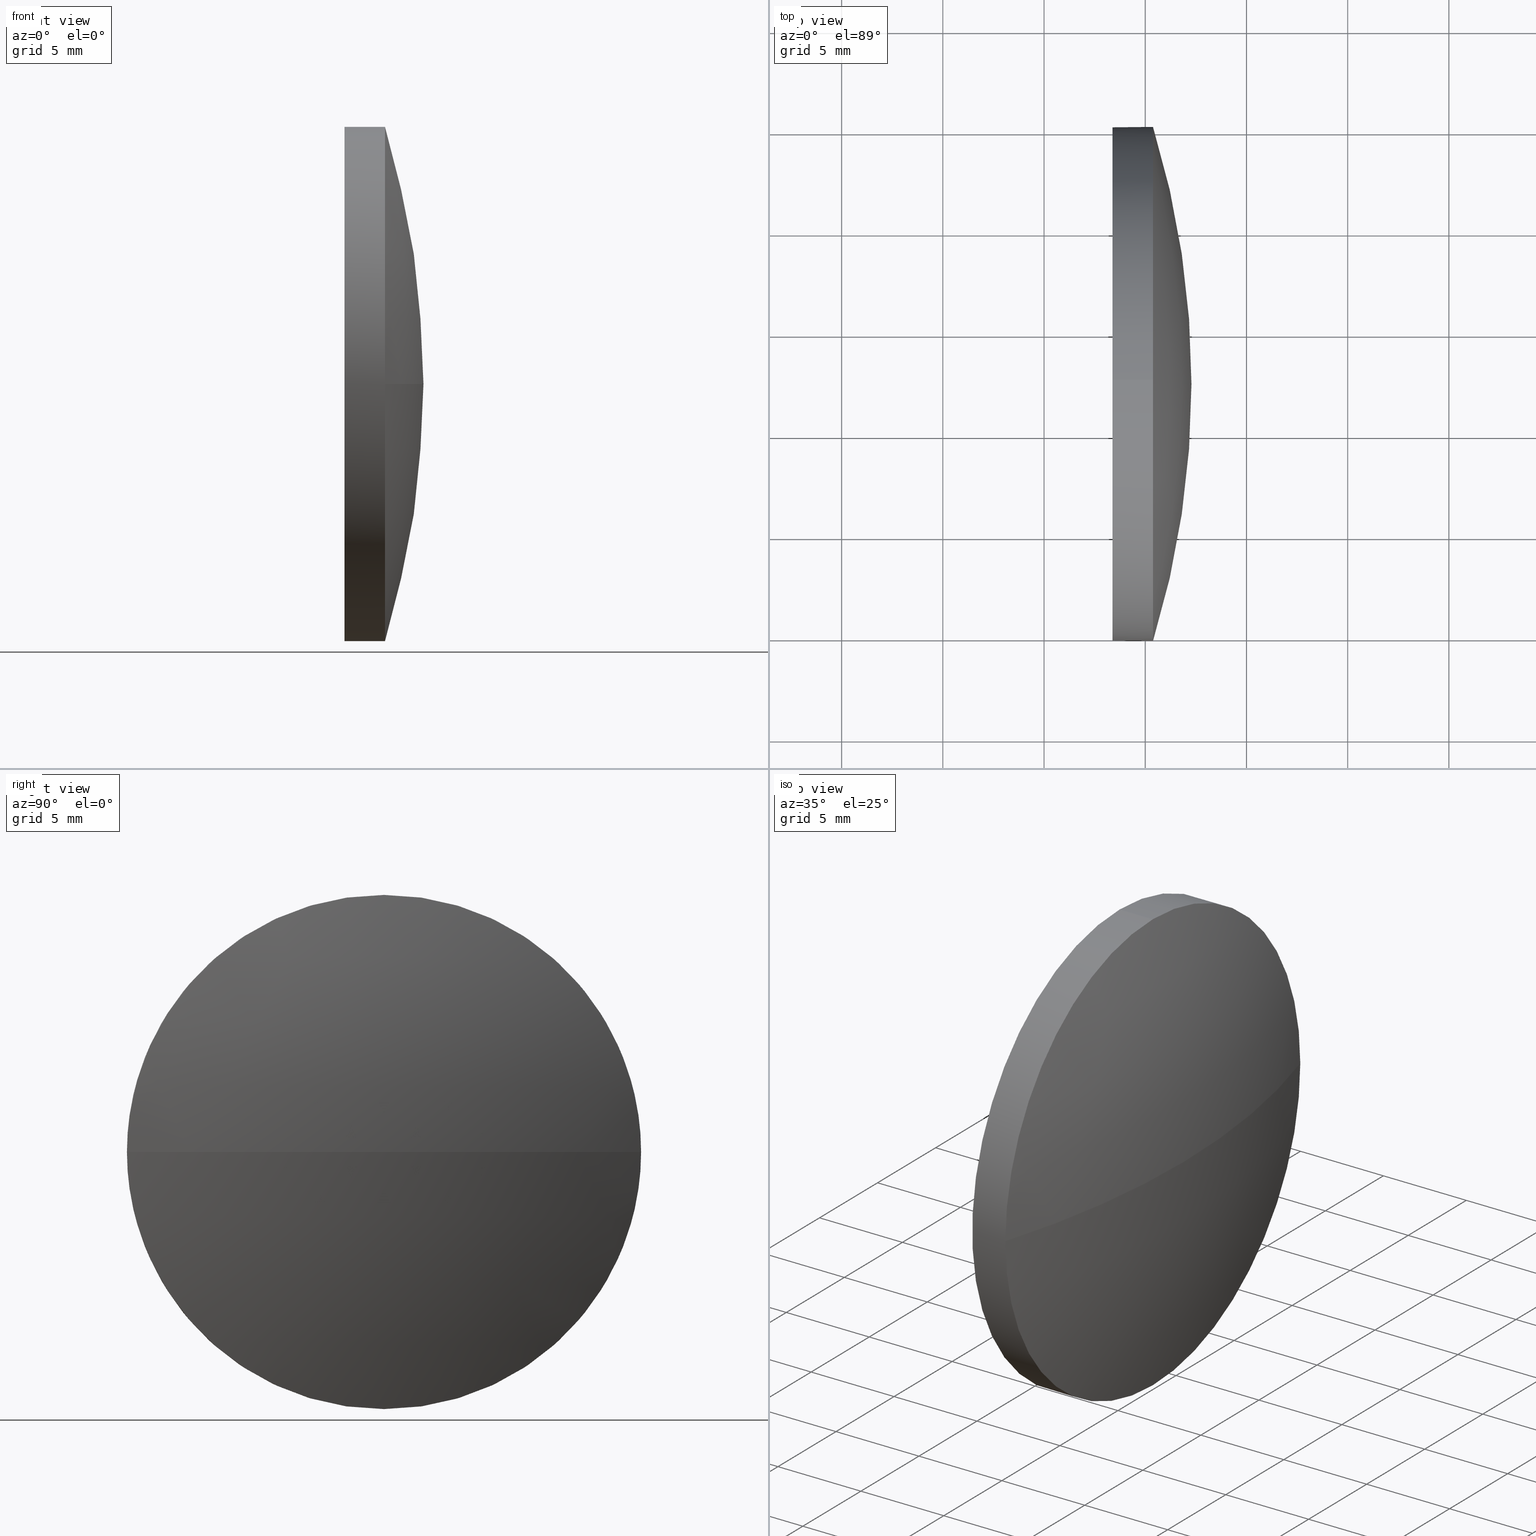
[diagram: canonical four-view strip — front | top / right | iso, engineering-drawing reading convention]
A machine part, canonical four-view strip (front | top / right | iso — engineering-drawing reading convention). The complete STEP part file that produces these views, byte-faithful:
ISO-10303-21;
HEADER;
FILE_DESCRIPTION (( 'STEP AP214' ),
    '1' );
FILE_NAME ('100449.STEP',
    '2019-06-10T01:49:45',
    ( '' ),
    ( '' ),
    'SwSTEP 2.0',
    'SolidWorks 2016',
    '' );
FILE_SCHEMA (( 'AUTOMOTIVE_DESIGN' ));
ENDSEC;

DATA;
#1 = DIRECTION ( 'NONE',  ( -1.000000000000000000, -0.0000000000000000000, -0.0000000000000000000 ) ) ;
#2 = DIRECTION ( 'NONE',  ( 0.0000000000000000000, 0.0000000000000000000, -1.000000000000000000 ) ) ;
#3 = ORIENTED_EDGE ( 'NONE', *, *, #175, .F. ) ;
#4 = FILL_AREA_STYLE ('',( #15 ) ) ;
#5 = SURFACE_SIDE_STYLE ('',( #40 ) ) ;
#6 = CLOSED_SHELL ( 'NONE', ( #20, #97, #180, #145, #182 ) ) ;
#7 =( NAMED_UNIT ( * ) PLANE_ANGLE_UNIT ( ) SI_UNIT ( $, .RADIAN. ) );
#8 = DIRECTION ( 'NONE',  ( 0.0000000000000000000, 0.0000000000000000000, 1.000000000000000000 ) ) ;
#9 = AXIS2_PLACEMENT_3D ( 'NONE', #116, #118, #25 ) ;
#10 = EDGE_LOOP ( 'NONE', ( #57, #22, #3, #113 ) ) ;
#11 = UNCERTAINTY_MEASURE_WITH_UNIT (LENGTH_MEASURE( 1.000000000000000100E-005 ), #72, 'distance_accuracy_value', 'NONE');
#12 = EDGE_CURVE ( 'NONE', #47, #23, #92, .T. ) ;
#13 = VERTEX_POINT ( 'NONE', #61 ) ;
#14 = ORIENTED_EDGE ( 'NONE', *, *, #60, .T. ) ;
#15 = FILL_AREA_STYLE_COLOUR ( '', #31 ) ;
#16 =( NAMED_UNIT ( * ) PLANE_ANGLE_UNIT ( ) SI_UNIT ( $, .RADIAN. ) );
#17 = ORIENTED_EDGE ( 'NONE', *, *, #12, .T. ) ;
#18 = CARTESIAN_POINT ( 'NONE',  ( 488.8881138188364700, 102.4595338729135000, 0.0000000000000000000 ) ) ;
#19 = APPLICATION_CONTEXT ( 'automotive_design' ) ;
#20 = ADVANCED_FACE ( 'NONE', ( #171 ), #140, .T. ) ;
#21 =( GEOMETRIC_REPRESENTATION_CONTEXT ( 3 ) GLOBAL_UNCERTAINTY_ASSIGNED_CONTEXT ( ( #11 ) ) GLOBAL_UNIT_ASSIGNED_CONTEXT ( ( #72, #7, #73 ) ) REPRESENTATION_CONTEXT ( 'NONE', 'WORKASPACE' ) );
#22 = ORIENTED_EDGE ( 'NONE', *, *, #184, .T. ) ;
#23 = VERTEX_POINT ( 'NONE', #157 ) ;
#24 = AXIS2_PLACEMENT_3D ( 'NONE', #42, #156, #91 ) ;
#25 = DIRECTION ( 'NONE',  ( 0.0000000000000000000, 0.0000000000000000000, 1.000000000000000000 ) ) ;
#26 = CARTESIAN_POINT ( 'NONE',  ( 522.6446326252653300, 102.4595338729133400, -12.70000000000000300 ) ) ;
#27 = CARTESIAN_POINT ( 'NONE',  ( 488.8881138188364700, 102.4595338729135000, 0.0000000000000000000 ) ) ;
#28 = DIRECTION ( 'NONE',  ( 0.0000000000000000000, 0.0000000000000000000, 1.000000000000000000 ) ) ;
#29 = UNCERTAINTY_MEASURE_WITH_UNIT (LENGTH_MEASURE( 1.000000000000000100E-005 ), #143, 'distance_accuracy_value', 'NONE');
#30 = CARTESIAN_POINT ( 'NONE',  ( 528.3828506609415900, 102.4595338729133400, 0.0000000000000000000 ) ) ;
#31 = COLOUR_RGB ( '',1.000000000000000000, 1.000000000000000000, 1.000000000000000000 ) ;
#32 = EDGE_LOOP ( 'NONE', ( #17, #89, #96, #186, #14 ) ) ;
#33 = EDGE_CURVE ( 'NONE', #161, #183, #79, .T. ) ;
#34 = DIRECTION ( 'NONE',  ( 0.0000000000000000000, -1.000000000000000000, 0.0000000000000000000 ) ) ;
#35 = DIRECTION ( 'NONE',  ( 0.0000000000000000000, 0.0000000000000000000, 1.000000000000000000 ) ) ;
#36 = CIRCLE ( 'NONE', #48, 43.39473684210512500 ) ;
#37 = CARTESIAN_POINT ( 'NONE',  ( 488.8881138188364700, 102.4595338729135000, 0.0000000000000000000 ) ) ;
#38 = DIRECTION ( 'NONE',  ( -1.000000000000000000, 0.0000000000000000000, 0.0000000000000000000 ) ) ;
#39 = VECTOR ( 'NONE', #123, 1000.000000000000000 ) ;
#40 = SURFACE_STYLE_FILL_AREA ( #181 ) ;
#41 = AXIS2_PLACEMENT_3D ( 'NONE', #101, #1, #120 ) ;
#42 = CARTESIAN_POINT ( 'NONE',  ( 522.6446326252653300, 102.4595338729133400, 0.0000000000000000000 ) ) ;
#43 = STYLED_ITEM ( 'NONE', ( #93 ), #100 ) ;
#44 = UNCERTAINTY_MEASURE_WITH_UNIT (LENGTH_MEASURE( 1.000000000000000100E-005 ), #46, 'distance_accuracy_value', 'NONE');
#45 = SURFACE_STYLE_USAGE ( .BOTH. , #94 ) ;
#46 =( LENGTH_UNIT ( ) NAMED_UNIT ( * ) SI_UNIT ( .MILLI., .METRE. ) );
#47 = VERTEX_POINT ( 'NONE', #122 ) ;
#48 = AXIS2_PLACEMENT_3D ( 'NONE', #49, #107, #81 ) ;
#49 = CARTESIAN_POINT ( 'NONE',  ( 488.8881138188364700, 102.4595338729135000, 0.0000000000000000000 ) ) ;
#50 = DIRECTION ( 'NONE',  ( 0.0000000000000000000, 0.0000000000000000000, 1.000000000000000000 ) ) ;
#51 = SPHERICAL_SURFACE ( 'NONE', #104, 43.39473684210512500 ) ;
#52 = PRODUCT ( '100449', '100449', '', ( #53 ) ) ;
#53 = PRODUCT_CONTEXT ( 'NONE', #19, 'mechanical' ) ;
#54 = STYLED_ITEM ( 'NONE', ( #84 ), #142 ) ;
#55 = VERTEX_POINT ( 'NONE', #105 ) ;
#56 = PRESENTATION_LAYER_ASSIGNMENT (  '', '', ( #43 ) ) ;
#57 = ORIENTED_EDGE ( 'NONE', *, *, #115, .F. ) ;
#58 = CYLINDRICAL_SURFACE ( 'NONE', #126, 12.70000000000000300 ) ;
#59 = ORIENTED_EDGE ( 'NONE', *, *, #77, .F. ) ;
#60 = EDGE_CURVE ( 'NONE', #55, #47, #110, .T. ) ;
#61 = CARTESIAN_POINT ( 'NONE',  ( 530.3828506609415900, 89.75953387291345100, 0.0000000000000000000 ) ) ;
#62 = EDGE_LOOP ( 'NONE', ( #117, #70 ) ) ;
#63 = AXIS2_PLACEMENT_3D ( 'NONE', #106, #8, #128 ) ;
#64 = PLANE ( 'NONE',  #98 ) ;
#65 = AXIS2_PLACEMENT_3D ( 'NONE', #30, #68, #35 ) ;
#66 = CARTESIAN_POINT ( 'NONE',  ( 530.3828506609415900, 102.4595338729133400, 0.0000000000000000000 ) ) ;
#67 = CARTESIAN_POINT ( 'NONE',  ( 532.2828506609415600, 102.4595338729135000, 0.0000000000000000000 ) ) ;
#68 = DIRECTION ( 'NONE',  ( -1.000000000000000000, -0.0000000000000000000, -0.0000000000000000000 ) ) ;
#69 = DIRECTION ( 'NONE',  ( 0.0000000000000000000, 0.0000000000000000000, 1.000000000000000000 ) ) ;
#70 = ORIENTED_EDGE ( 'NONE', *, *, #152, .T. ) ;
#71 =( GEOMETRIC_REPRESENTATION_CONTEXT ( 3 ) GLOBAL_UNCERTAINTY_ASSIGNED_CONTEXT ( ( #29 ) ) GLOBAL_UNIT_ASSIGNED_CONTEXT ( ( #143, #16, #127 ) ) REPRESENTATION_CONTEXT ( 'NONE', 'WORKASPACE' ) );
#72 =( LENGTH_UNIT ( ) NAMED_UNIT ( * ) SI_UNIT ( .MILLI., .METRE. ) );
#73 =( NAMED_UNIT ( * ) SI_UNIT ( $, .STERADIAN. ) SOLID_ANGLE_UNIT ( ) );
#74 = ORIENTED_EDGE ( 'NONE', *, *, #175, .T. ) ;
#75 = SPHERICAL_SURFACE ( 'NONE', #170, 43.39473684210512500 ) ;
#76 = PRODUCT_DEFINITION ( 'δ֪', '', #162, #174 ) ;
#77 = EDGE_CURVE ( 'NONE', #23, #183, #144, .T. ) ;
#78 = PRODUCT_RELATED_PRODUCT_CATEGORY ( 'part', '', ( #52 ) ) ;
#79 = CIRCLE ( 'NONE', #41, 12.70000000000000300 ) ;
#80 = CARTESIAN_POINT ( 'NONE',  ( 530.3828506609415900, 102.4595338729133400, 0.0000000000000000000 ) ) ;
#81 = DIRECTION ( 'NONE',  ( 0.0000000000000000000, -1.000000000000000000, -1.224646799147353200E-016 ) ) ;
#82 = PRESENTATION_LAYER_ASSIGNMENT (  '', '', ( #54 ) ) ;
#83 = CARTESIAN_POINT ( 'NONE',  ( 528.3828506609415900, 102.4595338729133400, 12.70000000000000300 ) ) ;
#84 = PRESENTATION_STYLE_ASSIGNMENT (( #45 ) ) ;
#85 = APPLICATION_PROTOCOL_DEFINITION ( 'draft international standard', 'automotive_design', 1998, #19 ) ;
#86 = ORIENTED_EDGE ( 'NONE', *, *, #115, .T. ) ;
#87 = CIRCLE ( 'NONE', #114, 12.70000000000000300 ) ;
#88 = EDGE_CURVE ( 'NONE', #55, #161, #130, .T. ) ;
#89 = ORIENTED_EDGE ( 'NONE', *, *, #77, .T. ) ;
#90 = AXIS2_PLACEMENT_3D ( 'NONE', #18, #164, #38 ) ;
#91 = DIRECTION ( 'NONE',  ( 0.0000000000000000000, 0.0000000000000000000, 1.000000000000000000 ) ) ;
#92 = CIRCLE ( 'NONE', #9, 12.70000000000000300 ) ;
#93 = PRESENTATION_STYLE_ASSIGNMENT (( #179 ) ) ;
#94 = SURFACE_SIDE_STYLE ('',( #148 ) ) ;
#95 = DIRECTION ( 'NONE',  ( -1.000000000000000000, -0.0000000000000000000, -0.0000000000000000000 ) ) ;
#96 = ORIENTED_EDGE ( 'NONE', *, *, #33, .F. ) ;
#97 = ADVANCED_FACE ( 'NONE', ( #124 ), #51, .T. ) ;
#98 = AXIS2_PLACEMENT_3D ( 'NONE', #160, #159, #2 ) ;
#99 = FACE_OUTER_BOUND ( 'NONE', #62, .T. ) ;
#100 = ADVANCED_BREP_SHAPE_REPRESENTATION ( '100449', ( #142, #63 ), #21 ) ;
#101 = CARTESIAN_POINT ( 'NONE',  ( 528.3828506609415900, 102.4595338729133400, 0.0000000000000000000 ) ) ;
#102 = ORIENTED_EDGE ( 'NONE', *, *, #169, .F. ) ;
#103 = SHAPE_DEFINITION_REPRESENTATION ( #121, #100 ) ;
#104 = AXIS2_PLACEMENT_3D ( 'NONE', #27, #69, #136 ) ;
#105 = CARTESIAN_POINT ( 'NONE',  ( 530.3828506609415900, 102.4595338729133400, 12.70000000000000300 ) ) ;
#106 = CARTESIAN_POINT ( 'NONE',  ( 0.0000000000000000000, 0.0000000000000000000, 0.0000000000000000000 ) ) ;
#107 = DIRECTION ( 'NONE',  ( 0.0000000000000000000, -1.224646799147353200E-016, 1.000000000000000000 ) ) ;
#108 = MECHANICAL_DESIGN_GEOMETRIC_PRESENTATION_REPRESENTATION (  '', ( #54 ), #147 ) ;
#109 = DIRECTION ( 'NONE',  ( 0.0000000000000000000, 0.0000000000000000000, 1.000000000000000000 ) ) ;
#110 = CIRCLE ( 'NONE', #129, 12.70000000000000300 ) ;
#111 = FILL_AREA_STYLE_COLOUR ( '', #178 ) ;
#112 = CIRCLE ( 'NONE', #65, 12.70000000000000300 ) ;
#113 = ORIENTED_EDGE ( 'NONE', *, *, #12, .F. ) ;
#114 = AXIS2_PLACEMENT_3D ( 'NONE', #66, #176, #139 ) ;
#115 = EDGE_CURVE ( 'NONE', #154, #47, #36, .T. ) ;
#116 = CARTESIAN_POINT ( 'NONE',  ( 530.3828506609415900, 102.4595338729133400, 0.0000000000000000000 ) ) ;
#117 = ORIENTED_EDGE ( 'NONE', *, *, #33, .T. ) ;
#118 = DIRECTION ( 'NONE',  ( -1.000000000000000000, -0.0000000000000000000, -0.0000000000000000000 ) ) ;
#119 = CIRCLE ( 'NONE', #90, 43.39473684210515400 ) ;
#120 = DIRECTION ( 'NONE',  ( 0.0000000000000000000, 0.0000000000000000000, 1.000000000000000000 ) ) ;
#121 = PRODUCT_DEFINITION_SHAPE ( 'NONE', 'NONE',  #76 ) ;
#122 = CARTESIAN_POINT ( 'NONE',  ( 530.3828506609415900, 115.1595338729133900, 1.555301434917125400E-015 ) ) ;
#123 = DIRECTION ( 'NONE',  ( -1.000000000000000000, -0.0000000000000000000, -0.0000000000000000000 ) ) ;
#124 = FACE_OUTER_BOUND ( 'NONE', #155, .T. ) ;
#125 =( NAMED_UNIT ( * ) PLANE_ANGLE_UNIT ( ) SI_UNIT ( $, .RADIAN. ) );
#126 = AXIS2_PLACEMENT_3D ( 'NONE', #135, #150, #137 ) ;
#127 =( NAMED_UNIT ( * ) SI_UNIT ( $, .STERADIAN. ) SOLID_ANGLE_UNIT ( ) );
#128 = DIRECTION ( 'NONE',  ( 1.000000000000000000, 0.0000000000000000000, 0.0000000000000000000 ) ) ;
#129 = AXIS2_PLACEMENT_3D ( 'NONE', #80, #172, #28 ) ;
#130 = LINE ( 'NONE', #132, #39 ) ;
#131 = ORIENTED_EDGE ( 'NONE', *, *, #184, .F. ) ;
#132 = CARTESIAN_POINT ( 'NONE',  ( 522.6446326252653300, 102.4595338729133400, 12.70000000000000300 ) ) ;
#133 = DIRECTION ( 'NONE',  ( -1.000000000000000000, -0.0000000000000000000, -0.0000000000000000000 ) ) ;
#134 = FACE_OUTER_BOUND ( 'NONE', #10, .T. ) ;
#135 = CARTESIAN_POINT ( 'NONE',  ( 522.6446326252653300, 102.4595338729133400, 0.0000000000000000000 ) ) ;
#136 = DIRECTION ( 'NONE',  ( 0.0000000000000000000, -1.000000000000000000, 0.0000000000000000000 ) ) ;
#137 = DIRECTION ( 'NONE',  ( 0.0000000000000000000, 0.0000000000000000000, 1.000000000000000000 ) ) ;
#138 = AXIS2_PLACEMENT_3D ( 'NONE', #177, #95, #109 ) ;
#139 = DIRECTION ( 'NONE',  ( 0.0000000000000000000, 0.0000000000000000000, 1.000000000000000000 ) ) ;
#140 = CYLINDRICAL_SURFACE ( 'NONE', #24, 12.70000000000000300 ) ;
#141 = ORIENTED_EDGE ( 'NONE', *, *, #88, .T. ) ;
#142 = MANIFOLD_SOLID_BREP ( '��ת1', #6 ) ;
#143 =( LENGTH_UNIT ( ) NAMED_UNIT ( * ) SI_UNIT ( .MILLI., .METRE. ) );
#144 = LINE ( 'NONE', #26, #168 ) ;
#145 = ADVANCED_FACE ( 'NONE', ( #185 ), #58, .T. ) ;
#146 = ORIENTED_EDGE ( 'NONE', *, *, #169, .T. ) ;
#147 =( GEOMETRIC_REPRESENTATION_CONTEXT ( 3 ) GLOBAL_UNCERTAINTY_ASSIGNED_CONTEXT ( ( #44 ) ) GLOBAL_UNIT_ASSIGNED_CONTEXT ( ( #46, #125, #149 ) ) REPRESENTATION_CONTEXT ( 'NONE', 'WORKASPACE' ) );
#148 = SURFACE_STYLE_FILL_AREA ( #4 ) ;
#149 =( NAMED_UNIT ( * ) SI_UNIT ( $, .STERADIAN. ) SOLID_ANGLE_UNIT ( ) );
#150 = DIRECTION ( 'NONE',  ( -1.000000000000000000, -0.0000000000000000000, -0.0000000000000000000 ) ) ;
#151 = MECHANICAL_DESIGN_GEOMETRIC_PRESENTATION_REPRESENTATION (  '', ( #43 ), #71 ) ;
#152 = EDGE_CURVE ( 'NONE', #183, #161, #112, .T. ) ;
#153 = APPLICATION_CONTEXT ( 'automotive_design' ) ;
#154 = VERTEX_POINT ( 'NONE', #67 ) ;
#155 = EDGE_LOOP ( 'NONE', ( #131, #86, #173, #102 ) ) ;
#156 = DIRECTION ( 'NONE',  ( -1.000000000000000000, -0.0000000000000000000, -0.0000000000000000000 ) ) ;
#157 = CARTESIAN_POINT ( 'NONE',  ( 530.3828506609415900, 102.4595338729133400, -12.70000000000000300 ) ) ;
#158 = CIRCLE ( 'NONE', #138, 12.70000000000000300 ) ;
#159 = DIRECTION ( 'NONE',  ( 1.000000000000000000, 0.0000000000000000000, 0.0000000000000000000 ) ) ;
#160 = CARTESIAN_POINT ( 'NONE',  ( 528.3828506609415900, 102.4595338729133400, 0.0000000000000000000 ) ) ;
#161 = VERTEX_POINT ( 'NONE', #83 ) ;
#162 = PRODUCT_DEFINITION_FORMATION_WITH_SPECIFIED_SOURCE ( '�κ�', '', #52, .NOT_KNOWN. ) ;
#163 = CARTESIAN_POINT ( 'NONE',  ( 528.3828506609415900, 102.4595338729133400, -12.70000000000000300 ) ) ;
#164 = DIRECTION ( 'NONE',  ( 0.0000000000000000000, 0.0000000000000000000, -1.000000000000000000 ) ) ;
#165 = EDGE_LOOP ( 'NONE', ( #59, #74, #146, #141, #166 ) ) ;
#166 = ORIENTED_EDGE ( 'NONE', *, *, #152, .F. ) ;
#167 = APPLICATION_PROTOCOL_DEFINITION ( 'draft international standard', 'automotive_design', 1998, #153 ) ;
#168 = VECTOR ( 'NONE', #133, 1000.000000000000000 ) ;
#169 = EDGE_CURVE ( 'NONE', #13, #55, #87, .T. ) ;
#170 = AXIS2_PLACEMENT_3D ( 'NONE', #37, #50, #34 ) ;
#171 = FACE_OUTER_BOUND ( 'NONE', #32, .T. ) ;
#172 = DIRECTION ( 'NONE',  ( -1.000000000000000000, -0.0000000000000000000, -0.0000000000000000000 ) ) ;
#173 = ORIENTED_EDGE ( 'NONE', *, *, #60, .F. ) ;
#174 = PRODUCT_DEFINITION_CONTEXT ( 'detailed design', #153, 'design' ) ;
#175 = EDGE_CURVE ( 'NONE', #23, #13, #158, .T. ) ;
#176 = DIRECTION ( 'NONE',  ( -1.000000000000000000, -0.0000000000000000000, -0.0000000000000000000 ) ) ;
#177 = CARTESIAN_POINT ( 'NONE',  ( 530.3828506609415900, 102.4595338729133400, 0.0000000000000000000 ) ) ;
#178 = COLOUR_RGB ( '',1.000000000000000000, 1.000000000000000000, 1.000000000000000000 ) ;
#179 = SURFACE_STYLE_USAGE ( .BOTH. , #5 ) ;
#180 = ADVANCED_FACE ( 'NONE', ( #134 ), #75, .T. ) ;
#181 = FILL_AREA_STYLE ('',( #111 ) ) ;
#182 = ADVANCED_FACE ( 'NONE', ( #99 ), #64, .F. ) ;
#183 = VERTEX_POINT ( 'NONE', #163 ) ;
#184 = EDGE_CURVE ( 'NONE', #154, #13, #119, .T. ) ;
#185 = FACE_OUTER_BOUND ( 'NONE', #165, .T. ) ;
#186 = ORIENTED_EDGE ( 'NONE', *, *, #88, .F. ) ;
ENDSEC;
END-ISO-10303-21;
